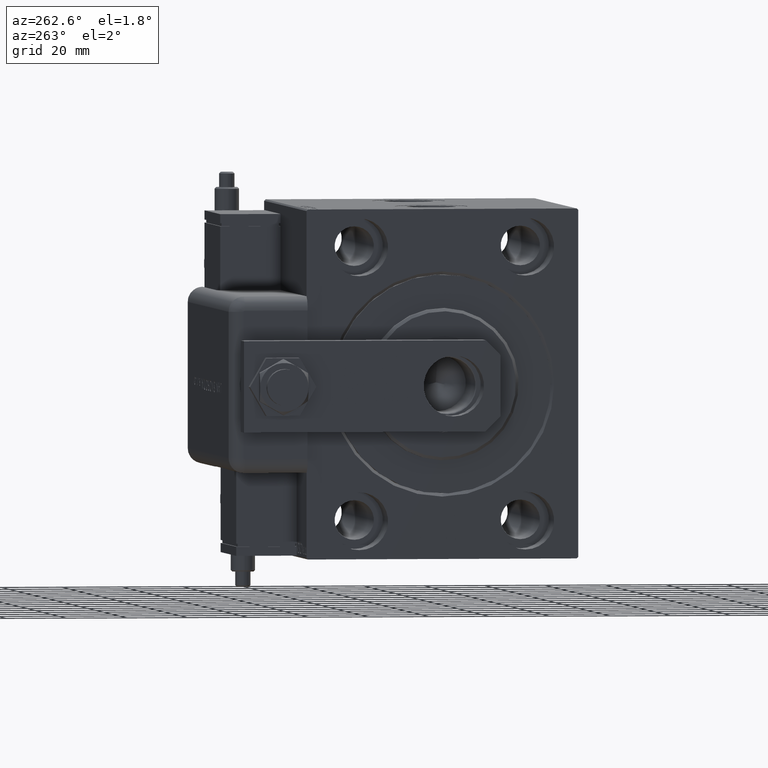
[diagram: clean part render]
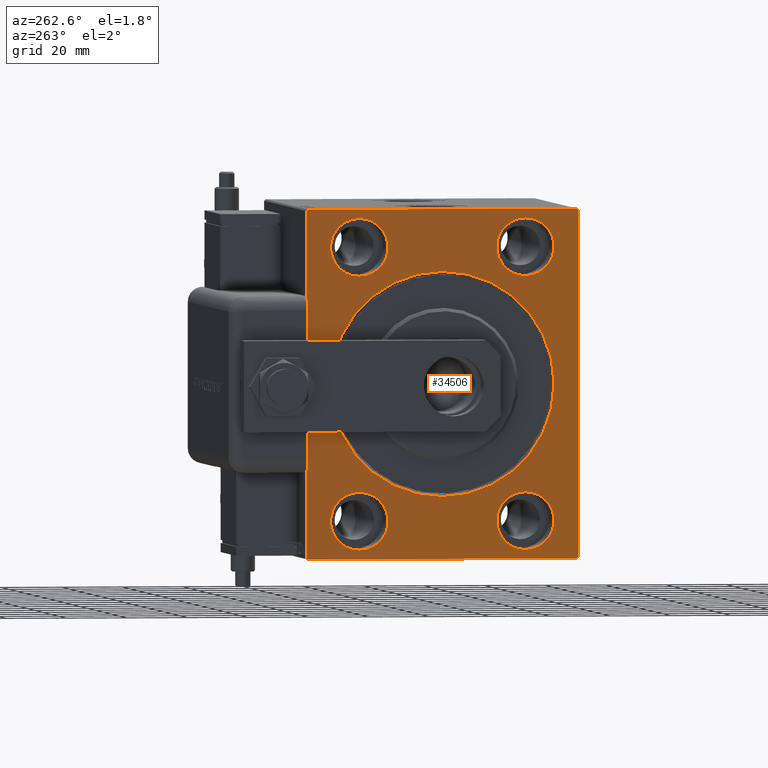
[diagram: same view with one face highlighted and labeled with its STEP entity id]
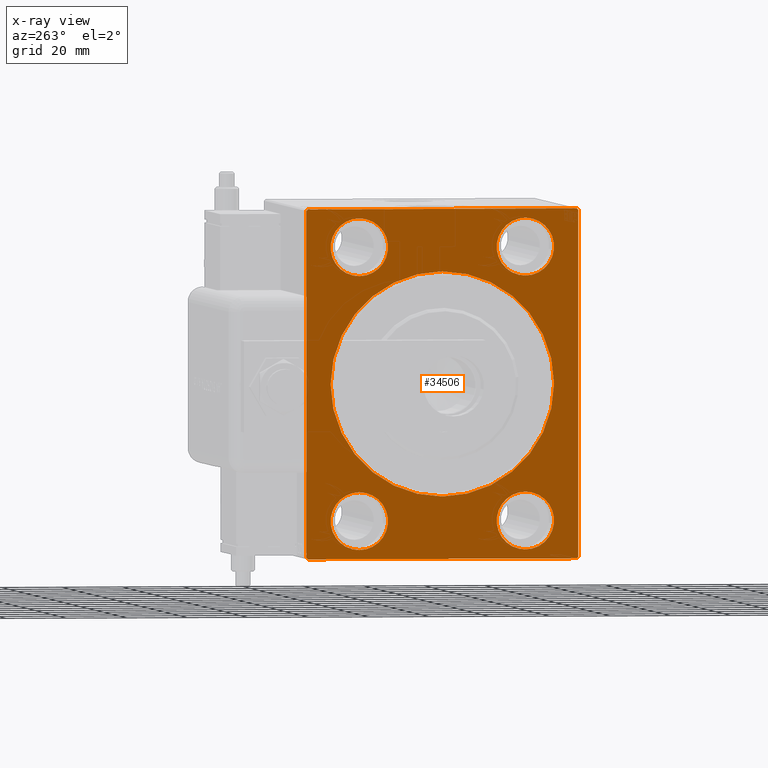
[diagram: x-ray of the same camera — body ghosted, the highlighted face saturated]
A machine part, auxiliary view. The second image highlights one B-rep face of the part: STEP entity #34506.
The next image is the same camera in x-ray: the body ghosted, the highlighted face saturated — about 0% of this face is hidden behind the body in this view.
In plain terms, the highlighted planar face has unit normal (1, 0, 0).
Its self-contained STEP definition (entity closure, byte-faithful):
#207 = ORIENTED_EDGE ( 'NONE', *, *, #36574, .T. ) ;
#253 = ORIENTED_EDGE ( 'NONE', *, *, #4158, .F. ) ;
#956 = FACE_BOUND ( 'NONE', #17117, .T. ) ;
#1124 = LINE ( 'NONE', #57617, #14315 ) ;
#2089 = ORIENTED_EDGE ( 'NONE', *, *, #49747, .F. ) ;
#2729 = EDGE_CURVE ( 'NONE', #32358, #51770, #27401, .T. ) ;
#2831 = ORIENTED_EDGE ( 'NONE', *, *, #11132, .T. ) ;
#3802 = VECTOR ( 'NONE', #60653, 1000.000000000000114 ) ;
#3840 = DIRECTION ( 'NONE',  ( -0.000000000000000000, -0.7071067811865474617, 0.7071067811865474617 ) ) ;
#4158 = EDGE_CURVE ( 'NONE', #45939, #51770, #9040, .T. ) ;
#4360 = AXIS2_PLACEMENT_3D ( 'NONE', #60633, #41976, #21636 ) ;
#5050 = CARTESIAN_POINT ( 'NONE',  ( 0.000000000000000000, 27.50000000000001066, 35.50000000000000711 ) ) ;
#5564 = DIRECTION ( 'NONE',  ( 0.000000000000000000, 0.000000000000000000, 1.000000000000000000 ) ) ;
#6286 = ORIENTED_EDGE ( 'NONE', *, *, #36811, .F. ) ;
#6484 = CARTESIAN_POINT ( 'NONE',  ( 0.000000000000000000, 0.000000000000000000, 0.000000000000000000 ) ) ;
#6570 = CARTESIAN_POINT ( 'NONE',  ( 0.000000000000000000, -45.00000000000000000, 56.99999999999999289 ) ) ;
#6574 = CARTESIAN_POINT ( 'NONE',  ( 0.000000000000000000, 27.49999999999998934, -44.99999999999998579 ) ) ;
#6905 = DIRECTION ( 'NONE',  ( 1.000000000000000000, 0.000000000000000000, 0.000000000000000000 ) ) ;
#7509 = CARTESIAN_POINT ( 'NONE',  ( 0.000000000000000000, -44.49999999999997158, 57.49999999999999289 ) ) ;
#8382 = DIRECTION ( 'NONE',  ( 0.000000000000000000, 0.000000000000000000, 1.000000000000000000 ) ) ;
#8574 = VERTEX_POINT ( 'NONE', #13575 ) ;
#8845 = VERTEX_POINT ( 'NONE', #12585 ) ;
#9040 = LINE ( 'NONE', #37561, #35036 ) ;
#9116 = CIRCLE ( 'NONE', #26920, 9.500000000000001776 ) ;
#9417 = VECTOR ( 'NONE', #36479, 1000.000000000000000 ) ;
#10059 = ORIENTED_EDGE ( 'NONE', *, *, #11671, .T. ) ;
#10585 = FACE_BOUND ( 'NONE', #45601, .T. ) ;
#10889 = ORIENTED_EDGE ( 'NONE', *, *, #35414, .F. ) ;
#11065 = LINE ( 'NONE', #44247, #39283 ) ;
#11132 = EDGE_CURVE ( 'NONE', #18926, #8845, #45543, .T. ) ;
#11176 = ORIENTED_EDGE ( 'NONE', *, *, #40939, .F. ) ;
#11372 = DIRECTION ( 'NONE',  ( 0.000000000000000000, 1.000000000000000000, 0.000000000000000000 ) ) ;
#11671 = EDGE_CURVE ( 'NONE', #45939, #18559, #22778, .T. ) ;
#11695 = CARTESIAN_POINT ( 'NONE',  ( 0.000000000000000000, -27.49999999999998934, 35.50000000000000711 ) ) ;
#12585 = CARTESIAN_POINT ( 'NONE',  ( 0.000000000000000000, 45.00000000000000000, 57.00000000000000711 ) ) ;
#12660 = DIRECTION ( 'NONE',  ( -0.000000000000000000, 0.7071067811865474617, -0.7071067811865474617 ) ) ;
#13407 = VERTEX_POINT ( 'NONE', #60720 ) ;
#13476 = CIRCLE ( 'NONE', #50138, 9.500000000000001776 ) ;
#13575 = CARTESIAN_POINT ( 'NONE',  ( 0.000000000000000000, 45.00000000000001421, -57.00000000000003553 ) ) ;
#13917 = VERTEX_POINT ( 'NONE', #51559 ) ;
#14274 = CIRCLE ( 'NONE', #24168, 9.500000000000001776 ) ;
#14295 = EDGE_CURVE ( 'NONE', #8574, #52158, #19205, .T. ) ;
#14315 = VECTOR ( 'NONE', #48288, 1000.000000000000000 ) ;
#14636 = FACE_OUTER_BOUND ( 'NONE', #47960, .T. ) ;
#14937 = FACE_BOUND ( 'NONE', #32571, .T. ) ;
#15980 = VERTEX_POINT ( 'NONE', #48512 ) ;
#16199 = DIRECTION ( 'NONE',  ( -1.000000000000000000, 0.000000000000000000, 0.000000000000000000 ) ) ;
#17042 = EDGE_CURVE ( 'NONE', #15980, #26576, #23859, .T. ) ;
#17117 = EDGE_LOOP ( 'NONE', ( #11176, #31525 ) ) ;
#17209 = CARTESIAN_POINT ( 'NONE',  ( 0.000000000000000000, -44.50000000000002842, -57.50000000000000711 ) ) ;
#17275 = CIRCLE ( 'NONE', #41025, 9.500000000000001776 ) ;
#17412 = AXIS2_PLACEMENT_3D ( 'NONE', #40384, #6905, #39464 ) ;
#17528 = CARTESIAN_POINT ( 'NONE',  ( 0.000000000000000000, 27.50000000000001066, 45.00000000000000711 ) ) ;
#17584 = CARTESIAN_POINT ( 'NONE',  ( 0.000000000000000000, 45.00000000000001421, -57.50000000000000711 ) ) ;
#18399 = EDGE_LOOP ( 'NONE', ( #44025, #42510 ) ) ;
#18559 = VERTEX_POINT ( 'NONE', #7509 ) ;
#18920 = CARTESIAN_POINT ( 'NONE',  ( 0.000000000000000000, -27.49999999999998934, 45.00000000000000711 ) ) ;
#18926 = VERTEX_POINT ( 'NONE', #61098 ) ;
#18999 = ORIENTED_EDGE ( 'NONE', *, *, #47896, .F. ) ;
#19205 = LINE ( 'NONE', #38403, #50508 ) ;
#20072 = ORIENTED_EDGE ( 'NONE', *, *, #2729, .T. ) ;
#20502 = CARTESIAN_POINT ( 'NONE',  ( 0.000000000000000000, 27.50000000000001066, 54.50000000000000711 ) ) ;
#21021 = CARTESIAN_POINT ( 'NONE',  ( 0.000000000000000000, 44.50000000000002842, 57.50000000000000711 ) ) ;
#21066 = CARTESIAN_POINT ( 'NONE',  ( 0.000000000000000000, -44.50000000000002842, -57.50000000000000711 ) ) ;
#21636 = DIRECTION ( 'NONE',  ( 0.000000000000000000, 0.000000000000000000, 1.000000000000000000 ) ) ;
#22353 = AXIS2_PLACEMENT_3D ( 'NONE', #24837, #38168, #29477 ) ;
#22778 = LINE ( 'NONE', #41682, #3802 ) ;
#23859 = CIRCLE ( 'NONE', #44677, 9.500000000000001776 ) ;
#24168 = AXIS2_PLACEMENT_3D ( 'NONE', #17528, #45753, #51018 ) ;
#24837 = CARTESIAN_POINT ( 'NONE',  ( 0.000000000000000000, 0.000000000000000000, 0.000000000000000000 ) ) ;
#26576 = VERTEX_POINT ( 'NONE', #30892 ) ;
#26920 = AXIS2_PLACEMENT_3D ( 'NONE', #6574, #16199, #44718 ) ;
#27401 = LINE ( 'NONE', #17209, #58813 ) ;
#28025 = DIRECTION ( 'NONE',  ( 0.000000000000000000, 0.000000000000000000, 1.000000000000000000 ) ) ;
#29090 = EDGE_CURVE ( 'NONE', #26576, #15980, #46973, .T. ) ;
#29098 = DIRECTION ( 'NONE',  ( 0.000000000000000000, -0.7071067811865474617, -0.7071067811865474617 ) ) ;
#29477 = DIRECTION ( 'NONE',  ( 0.000000000000000000, 0.000000000000000000, -1.000000000000000000 ) ) ;
#30090 = EDGE_CURVE ( 'NONE', #55210, #33254, #17275, .T. ) ;
#30102 = DIRECTION ( 'NONE',  ( 0.000000000000000000, 0.000000000000000000, 1.000000000000000000 ) ) ;
#30892 = CARTESIAN_POINT ( 'NONE',  ( 0.000000000000000000, -27.50000000000000000, -35.49999999999998579 ) ) ;
#30926 = EDGE_CURVE ( 'NONE', #18926, #18559, #1124, .T. ) ;
#31525 = ORIENTED_EDGE ( 'NONE', *, *, #54435, .F. ) ;
#32358 = VERTEX_POINT ( 'NONE', #21066 ) ;
#32571 = EDGE_LOOP ( 'NONE', ( #36642, #2089 ) ) ;
#32883 = EDGE_CURVE ( 'NONE', #8574, #8845, #60097, .T. ) ;
#32999 = AXIS2_PLACEMENT_3D ( 'NONE', #18920, #33167, #5564 ) ;
#33167 = DIRECTION ( 'NONE',  ( -1.000000000000000000, 0.000000000000000000, 0.000000000000000000 ) ) ;
#33254 = VERTEX_POINT ( 'NONE', #5050 ) ;
#34284 = AXIS2_PLACEMENT_3D ( 'NONE', #50890, #54956, #8382 ) ;
#34372 = EDGE_CURVE ( 'NONE', #56973, #13917, #49111, .T. ) ;
#34506 = ADVANCED_FACE ( 'NONE', ( #10585, #956, #57448, #14937, #48432, #14636 ), #38773, .F. ) ;
#34594 = CARTESIAN_POINT ( 'NONE',  ( 0.000000000000000000, 27.49999999999998934, -44.99999999999998579 ) ) ;
#34760 = DIRECTION ( 'NONE',  ( -1.000000000000000000, 0.000000000000000000, 0.000000000000000000 ) ) ;
#34777 = CARTESIAN_POINT ( 'NONE',  ( 0.000000000000000000, 0.000000000000000000, 37.00000000000003553 ) ) ;
#35036 = VECTOR ( 'NONE', #61182, 1000.000000000000000 ) ;
#35406 = VERTEX_POINT ( 'NONE', #45926 ) ;
#35414 = EDGE_CURVE ( 'NONE', #52626, #48914, #47192, .T. ) ;
#36479 = DIRECTION ( 'NONE',  ( 0.000000000000000000, -1.206764157201257045E-16, 1.000000000000000000 ) ) ;
#36574 = EDGE_CURVE ( 'NONE', #13917, #56973, #57141, .T. ) ;
#36642 = ORIENTED_EDGE ( 'NONE', *, *, #30090, .F. ) ;
#36811 = EDGE_CURVE ( 'NONE', #32358, #52158, #11065, .T. ) ;
#37212 = ORIENTED_EDGE ( 'NONE', *, *, #14295, .T. ) ;
#37511 = CARTESIAN_POINT ( 'NONE',  ( 0.000000000000000000, 44.50000000000001421, -57.50000000000000711 ) ) ;
#37561 = CARTESIAN_POINT ( 'NONE',  ( 0.000000000000000000, -45.00000000000000000, 57.49999999999999289 ) ) ;
#38168 = DIRECTION ( 'NONE',  ( 1.000000000000000000, 0.000000000000000000, 0.000000000000000000 ) ) ;
#38403 = CARTESIAN_POINT ( 'NONE',  ( 0.000000000000000000, 45.00000000000001421, -57.00000000000003553 ) ) ;
#38486 = CARTESIAN_POINT ( 'NONE',  ( 0.000000000000000000, -27.50000000000000000, -44.99999999999998579 ) ) ;
#38773 = PLANE ( 'NONE',  #22353 ) ;
#38959 = ORIENTED_EDGE ( 'NONE', *, *, #34372, .T. ) ;
#39283 = VECTOR ( 'NONE', #11372, 1000.000000000000000 ) ;
#39464 = DIRECTION ( 'NONE',  ( 0.000000000000000000, 0.000000000000000000, -1.000000000000000000 ) ) ;
#40384 = CARTESIAN_POINT ( 'NONE',  ( 0.000000000000000000, 0.000000000000000000, 0.000000000000000000 ) ) ;
#40939 = EDGE_CURVE ( 'NONE', #13407, #35406, #9116, .T. ) ;
#41025 = AXIS2_PLACEMENT_3D ( 'NONE', #41685, #42302, #28025 ) ;
#41622 = CARTESIAN_POINT ( 'NONE',  ( 0.000000000000000000, -45.00000000000000000, -57.00000000000003553 ) ) ;
#41682 = CARTESIAN_POINT ( 'NONE',  ( 0.000000000000000000, -45.00000000000000000, 56.99999999999999289 ) ) ;
#41685 = CARTESIAN_POINT ( 'NONE',  ( 0.000000000000000000, 27.50000000000001066, 45.00000000000000711 ) ) ;
#41976 = DIRECTION ( 'NONE',  ( -1.000000000000000000, 0.000000000000000000, 0.000000000000000000 ) ) ;
#42302 = DIRECTION ( 'NONE',  ( -1.000000000000000000, 0.000000000000000000, 0.000000000000000000 ) ) ;
#42510 = ORIENTED_EDGE ( 'NONE', *, *, #17042, .F. ) ;
#43891 = CARTESIAN_POINT ( 'NONE',  ( 0.000000000000000000, -27.49999999999998934, 54.50000000000000711 ) ) ;
#44025 = ORIENTED_EDGE ( 'NONE', *, *, #29090, .F. ) ;
#44247 = CARTESIAN_POINT ( 'NONE',  ( 0.000000000000000000, -45.00000000000000000, -57.50000000000000711 ) ) ;
#44677 = AXIS2_PLACEMENT_3D ( 'NONE', #38486, #34760, #30102 ) ;
#44718 = DIRECTION ( 'NONE',  ( 0.000000000000000000, 0.000000000000000000, 1.000000000000000000 ) ) ;
#45543 = LINE ( 'NONE', #21021, #60337 ) ;
#45601 = EDGE_LOOP ( 'NONE', ( #38959, #207 ) ) ;
#45753 = DIRECTION ( 'NONE',  ( -1.000000000000000000, 0.000000000000000000, 0.000000000000000000 ) ) ;
#45926 = CARTESIAN_POINT ( 'NONE',  ( 0.000000000000000000, 27.49999999999998934, -54.49999999999998579 ) ) ;
#45939 = VERTEX_POINT ( 'NONE', #6570 ) ;
#46973 = CIRCLE ( 'NONE', #4360, 9.500000000000001776 ) ;
#47192 = CIRCLE ( 'NONE', #34284, 9.500000000000001776 ) ;
#47896 = EDGE_CURVE ( 'NONE', #48914, #52626, #49917, .T. ) ;
#47960 = EDGE_LOOP ( 'NONE', ( #253, #10059, #51176, #2831, #56966, #37212, #6286, #20072 ) ) ;
#47970 = DIRECTION ( 'NONE',  ( 0.000000000000000000, 0.000000000000000000, 1.000000000000000000 ) ) ;
#48214 = AXIS2_PLACEMENT_3D ( 'NONE', #6484, #58615, #53045 ) ;
#48288 = DIRECTION ( 'NONE',  ( 0.000000000000000000, -1.000000000000000000, -1.541976423090495387E-16 ) ) ;
#48432 = FACE_BOUND ( 'NONE', #18399, .T. ) ;
#48512 = CARTESIAN_POINT ( 'NONE',  ( 0.000000000000000000, -27.50000000000000000, -54.49999999999998579 ) ) ;
#48914 = VERTEX_POINT ( 'NONE', #11695 ) ;
#49111 = CIRCLE ( 'NONE', #17412, 37.00000000000003553 ) ;
#49747 = EDGE_CURVE ( 'NONE', #33254, #55210, #14274, .T. ) ;
#49917 = CIRCLE ( 'NONE', #32999, 9.500000000000001776 ) ;
#50138 = AXIS2_PLACEMENT_3D ( 'NONE', #34594, #53855, #47970 ) ;
#50508 = VECTOR ( 'NONE', #29098, 1000.000000000000114 ) ;
#50890 = CARTESIAN_POINT ( 'NONE',  ( 0.000000000000000000, -27.49999999999998934, 45.00000000000000711 ) ) ;
#51018 = DIRECTION ( 'NONE',  ( 0.000000000000000000, 0.000000000000000000, 1.000000000000000000 ) ) ;
#51176 = ORIENTED_EDGE ( 'NONE', *, *, #30926, .F. ) ;
#51559 = CARTESIAN_POINT ( 'NONE',  ( 0.000000000000000000, 4.531193156845210737E-15, -37.00000000000003553 ) ) ;
#51770 = VERTEX_POINT ( 'NONE', #41622 ) ;
#52158 = VERTEX_POINT ( 'NONE', #37511 ) ;
#52626 = VERTEX_POINT ( 'NONE', #43891 ) ;
#53045 = DIRECTION ( 'NONE',  ( 0.000000000000000000, 0.000000000000000000, -1.000000000000000000 ) ) ;
#53855 = DIRECTION ( 'NONE',  ( -1.000000000000000000, 0.000000000000000000, 0.000000000000000000 ) ) ;
#54435 = EDGE_CURVE ( 'NONE', #35406, #13407, #13476, .T. ) ;
#54956 = DIRECTION ( 'NONE',  ( -1.000000000000000000, 0.000000000000000000, 0.000000000000000000 ) ) ;
#55210 = VERTEX_POINT ( 'NONE', #20502 ) ;
#56966 = ORIENTED_EDGE ( 'NONE', *, *, #32883, .F. ) ;
#56973 = VERTEX_POINT ( 'NONE', #34777 ) ;
#57141 = CIRCLE ( 'NONE', #48214, 37.00000000000003553 ) ;
#57448 = FACE_BOUND ( 'NONE', #59442, .T. ) ;
#57617 = CARTESIAN_POINT ( 'NONE',  ( 0.000000000000000000, 45.00000000000000000, 57.50000000000000711 ) ) ;
#58615 = DIRECTION ( 'NONE',  ( 1.000000000000000000, 0.000000000000000000, 0.000000000000000000 ) ) ;
#58813 = VECTOR ( 'NONE', #3840, 1000.000000000000114 ) ;
#59442 = EDGE_LOOP ( 'NONE', ( #10889, #18999 ) ) ;
#60097 = LINE ( 'NONE', #17584, #9417 ) ;
#60337 = VECTOR ( 'NONE', #12660, 1000.000000000000114 ) ;
#60633 = CARTESIAN_POINT ( 'NONE',  ( 0.000000000000000000, -27.50000000000000000, -44.99999999999998579 ) ) ;
#60653 = DIRECTION ( 'NONE',  ( -0.000000000000000000, 0.7071067811865474617, 0.7071067811865474617 ) ) ;
#60720 = CARTESIAN_POINT ( 'NONE',  ( 0.000000000000000000, 27.49999999999998934, -35.49999999999998579 ) ) ;
#61098 = CARTESIAN_POINT ( 'NONE',  ( 0.000000000000000000, 44.50000000000002842, 57.50000000000000711 ) ) ;
#61182 = DIRECTION ( 'NONE',  ( 0.000000000000000000, 0.000000000000000000, -1.000000000000000000 ) ) ;